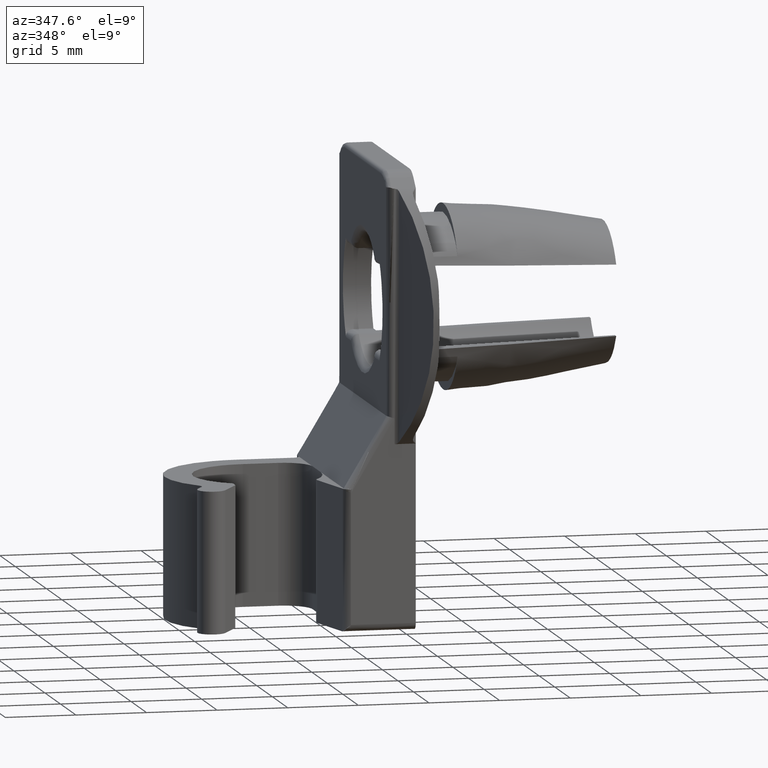
[diagram: clean part render]
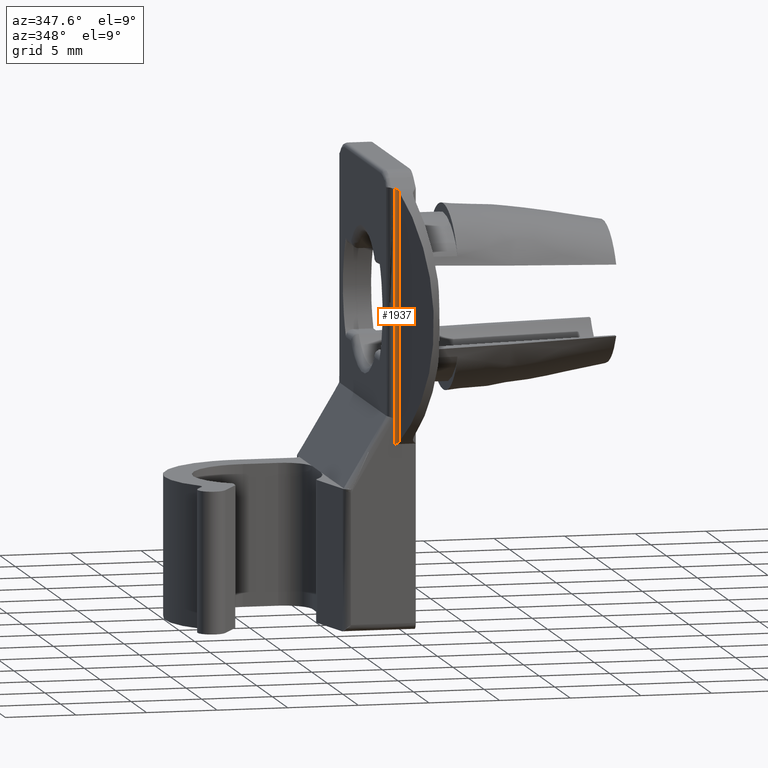
[diagram: same view with one face highlighted and labeled with its STEP entity id]
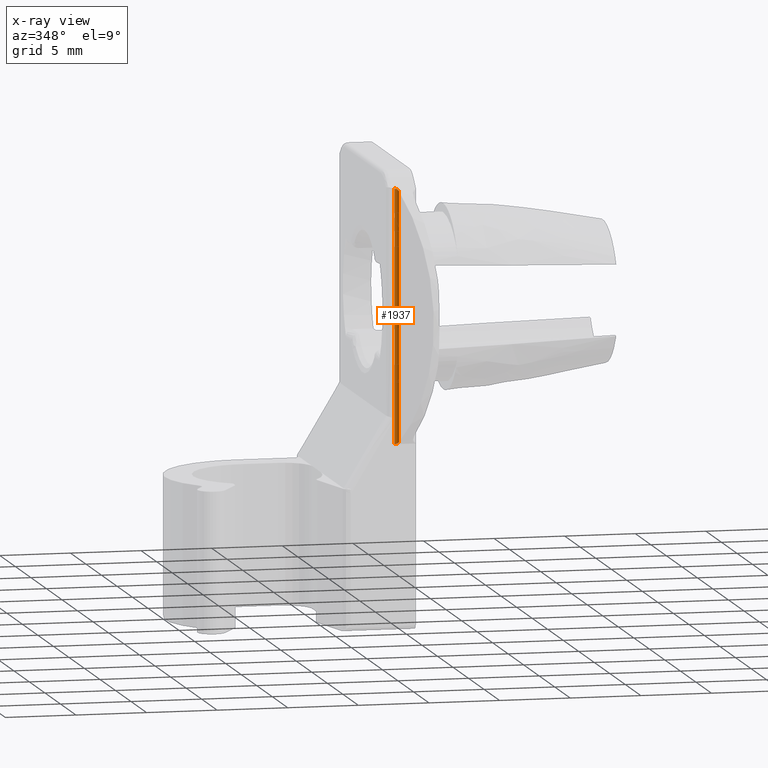
[diagram: x-ray of the same camera — body ghosted, the highlighted face saturated]
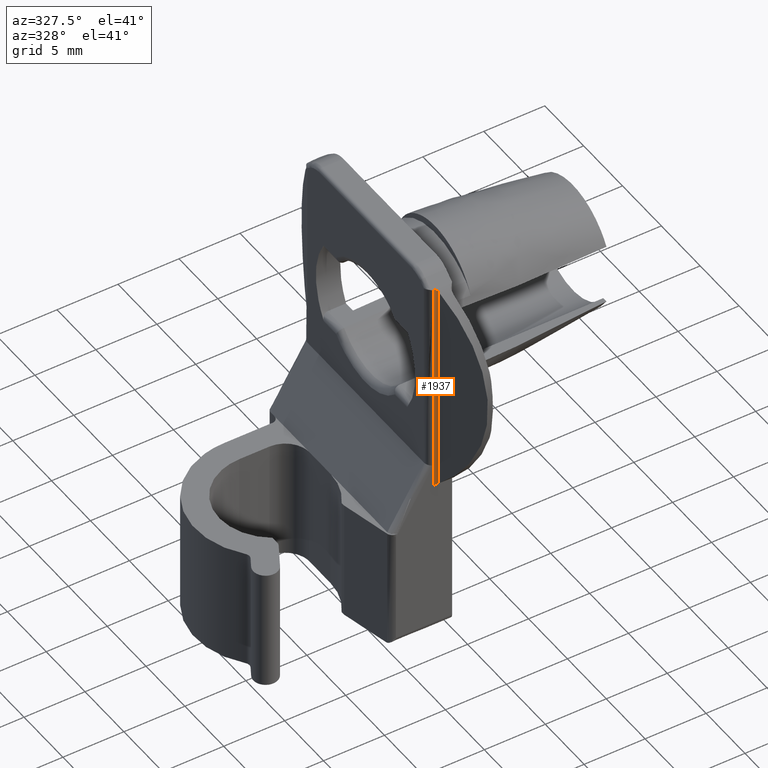
[diagram: same view with one face highlighted and labeled with its STEP entity id]
A machine part, auxiliary view. The second image highlights one B-rep face of the part: STEP entity #1937.
The next image is the same camera in x-ray: the body ghosted, the highlighted face saturated — about 0% of this face is hidden behind the body in this view.
A second angle (auxiliary view) of the same face is appended — the face is thin or edge-on in the first view.
In plain terms, the highlighted face is a freeform B-spline surface patch.
Its self-contained STEP definition (entity closure, byte-faithful):
#1869=CARTESIAN_POINT('',(-1.506254606396974,-8.000102802507334,-9.391481279330293));
#1870=CARTESIAN_POINT('',(-1.506254606396974,-8.000102802507334,9.402661614186567));
#1871=CARTESIAN_POINT('',(-1.292340014343716,-7.994501251777312,-9.391481279330293));
#1872=CARTESIAN_POINT('',(-1.292340014343716,-7.994501251777312,9.402661614186567));
#1873=CARTESIAN_POINT('',(-1.217399865130084,-8.194937785622148,-9.391481279330293));
#1874=CARTESIAN_POINT('',(-1.217399865130084,-8.194937785622148,9.402661614186567));
#1882=(BOUNDED_SURFACE()B_SPLINE_SURFACE(1,2,((#1869,#1871,#1873),(#1870,#1872,#1874)),.UNSPECIFIED.,.F.,.F.,.U.)B_SPLINE_SURFACE_WITH_KNOTS((2,2),(3,3),(0.0,18.794142893516860),(0.0,0.384123028441156),.UNSPECIFIED.)GEOMETRIC_REPRESENTATION_ITEM()RATIONAL_B_SPLINE_SURFACE(((1.0,0.814115518356319,1.0),(1.0,0.814115518356319,1.0)))REPRESENTATION_ITEM('')SURFACE());
#1883=CARTESIAN_POINT('',(-1.222300474992636,-8.182661975923740,-8.777469509362089));
#1884=VERTEX_POINT('',#1883);
#1885=CARTESIAN_POINT('',(-1.498401521904612,-8.0,-8.944267885076471));
#1886=VERTEX_POINT('',#1885);
#1887=CARTESIAN_POINT('',(-1.222300474992636,-8.182661975923740,-8.777469509362069));
#1888=CARTESIAN_POINT('',(-1.232163293219570,-8.159454371573855,-8.799104444289901));
#1889=CARTESIAN_POINT('',(-1.244983978547901,-8.137262309890915,-8.819620235365731));
#1890=CARTESIAN_POINT('',(-1.277480666263409,-8.095310032962654,-8.858142833927328));
#1891=CARTESIAN_POINT('',(-1.297532557213235,-8.075287242249733,-8.876384500863335));
#1892=CARTESIAN_POINT('',(-1.344387346034658,-8.040917391353624,-8.907531271762961));
#1893=CARTESIAN_POINT('',(-1.371839575931554,-8.026164105673061,-8.920807451314509));
#1894=CARTESIAN_POINT('',(-1.416839680993398,-8.010865650769704,-8.934540082398288));
#1895=CARTESIAN_POINT('',(-1.432665242032913,-8.006827181641567,-8.938157516674835));
#1896=CARTESIAN_POINT('',(-1.465171967424650,-8.001390963591760,-8.943024318278315));
#1897=CARTESIAN_POINT('',(-1.481662573437390,-8.0,-8.944267885076400));
#1898=CARTESIAN_POINT('',(-1.498401521904612,-8.0,-8.944267885076471));
#1899=B_SPLINE_CURVE_WITH_KNOTS('',3,(#1887,#1888,#1889,#1890,#1891,#1892,#1893,#1894,#1895,#1896,#1897,#1898),.UNSPECIFIED.,.F.,.U.,(4,2,2,2,2,4),(0.0,0.250000000000001,0.500000000000001,0.750000000000002,0.875000000000001,1.0),.UNSPECIFIED.);
#1900=EDGE_CURVE('',#1884,#1886,#1899,.T.);
#1901=ORIENTED_EDGE('',*,*,#1900,.F.);
#1902=CARTESIAN_POINT('',(-1.222300474992636,-8.182661975923740,8.777469509362089));
#1903=VERTEX_POINT('',#1902);
#1904=CARTESIAN_POINT('',(-1.222300474992636,-8.182661975923740,8.777469509362089));
#1905=CARTESIAN_POINT('',(-1.222300474992636,-8.182661975923740,-8.777469509362089));
#1906=QUASI_UNIFORM_CURVE('',1,(#1904,#1905),.UNSPECIFIED.,.F.,.U.);
#1907=EDGE_CURVE('',#1903,#1884,#1906,.T.);
#1908=ORIENTED_EDGE('',*,*,#1907,.F.);
#1909=CARTESIAN_POINT('',(-1.498401521904612,-8.0,8.944267885076400));
#1910=VERTEX_POINT('',#1909);
#1911=CARTESIAN_POINT('',(-1.498401521904600,-8.0,8.944267885076400));
#1912=CARTESIAN_POINT('',(-1.481675515155463,-7.999999999999998,8.944267885076403));
#1913=CARTESIAN_POINT('',(-1.465292786259778,-8.001388149502208,8.943026809660156));
#1914=CARTESIAN_POINT('',(-1.433161829194861,-8.006727075697649,8.938247164438048));
#1915=CARTESIAN_POINT('',(-1.417242556012572,-8.010748008151380,8.934645569695029));
#1916=CARTESIAN_POINT('',(-1.387082614129974,-8.020963096876194,8.925476239659288));
#1917=CARTESIAN_POINT('',(-1.372814777232158,-8.027123243175719,8.919938988756991));
#1918=CARTESIAN_POINT('',(-1.345724008908351,-8.041304557679037,8.907156680721933));
#1919=CARTESIAN_POINT('',(-1.332935914537926,-8.049336850448144,8.899901023864336));
#1920=CARTESIAN_POINT('',(-1.309499096797025,-8.066490352334311,8.884356778195114));
#1921=CARTESIAN_POINT('',(-1.298719531691512,-8.075677479947867,8.876008915753360));
#1922=CARTESIAN_POINT('',(-1.278818616770642,-8.095117501989728,8.858282771601388));
#1923=CARTESIAN_POINT('',(-1.269658597164034,-8.105433990513998,8.848845910013656));
#1924=CARTESIAN_POINT('',(-1.245024572653937,-8.137159119835893,8.819716203678205));
#1925=CARTESIAN_POINT('',(-1.232165659229465,-8.159448804238856,8.799109634352993));
#1926=CARTESIAN_POINT('',(-1.222300474992636,-8.182661975923740,8.777469509362089));
#1927=B_SPLINE_CURVE_WITH_KNOTS('',3,(#1911,#1912,#1913,#1914,#1915,#1916,#1917,#1918,#1919,#1920,#1921,#1922,#1923,#1924,#1925,#1926),.UNSPECIFIED.,.F.,.U.,(4,2,2,2,2,2,2,4),(0.0,0.125000000000001,0.250000000000002,0.375000000000004,0.500000000000005,0.625000000000006,0.750000000000007,1.0),.UNSPECIFIED.);
#1928=EDGE_CURVE('',#1910,#1903,#1927,.T.);
#1929=ORIENTED_EDGE('',*,*,#1928,.F.);
#1930=CARTESIAN_POINT('',(-1.498401521904612,-8.0,-8.944267885076471));
#1931=CARTESIAN_POINT('',(-1.498401521904612,-8.0,8.944267885076400));
#1932=QUASI_UNIFORM_CURVE('',1,(#1930,#1931),.UNSPECIFIED.,.F.,.U.);
#1933=EDGE_CURVE('',#1886,#1910,#1932,.T.);
#1934=ORIENTED_EDGE('',*,*,#1933,.F.);
#1935=EDGE_LOOP('',(#1901,#1908,#1929,#1934));
#1936=FACE_OUTER_BOUND('',#1935,.T.);
#1937=ADVANCED_FACE('',(#1936),#1882,.F.);